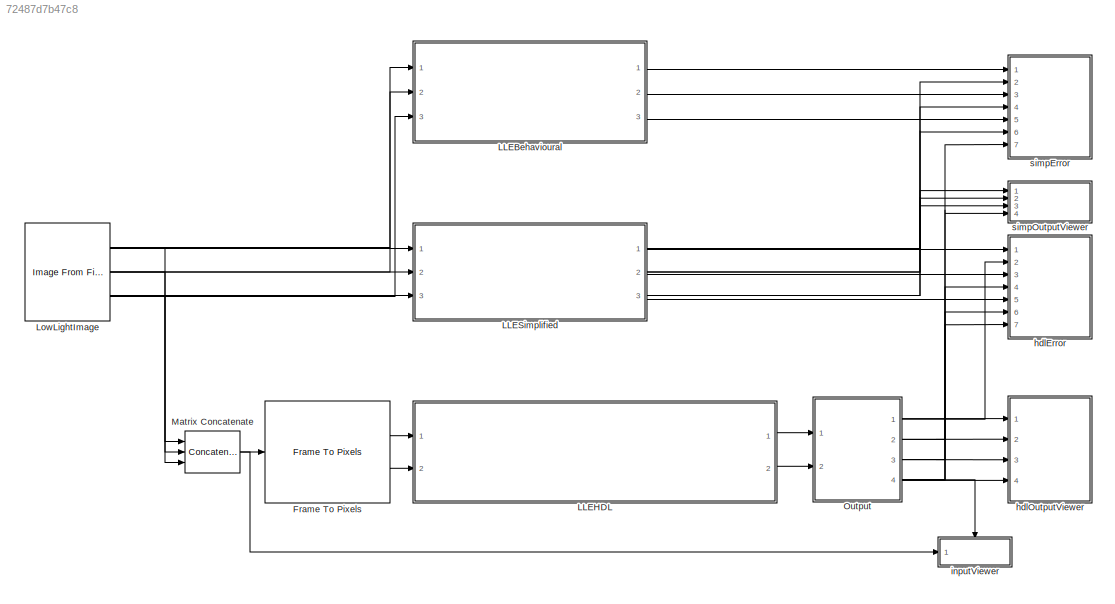
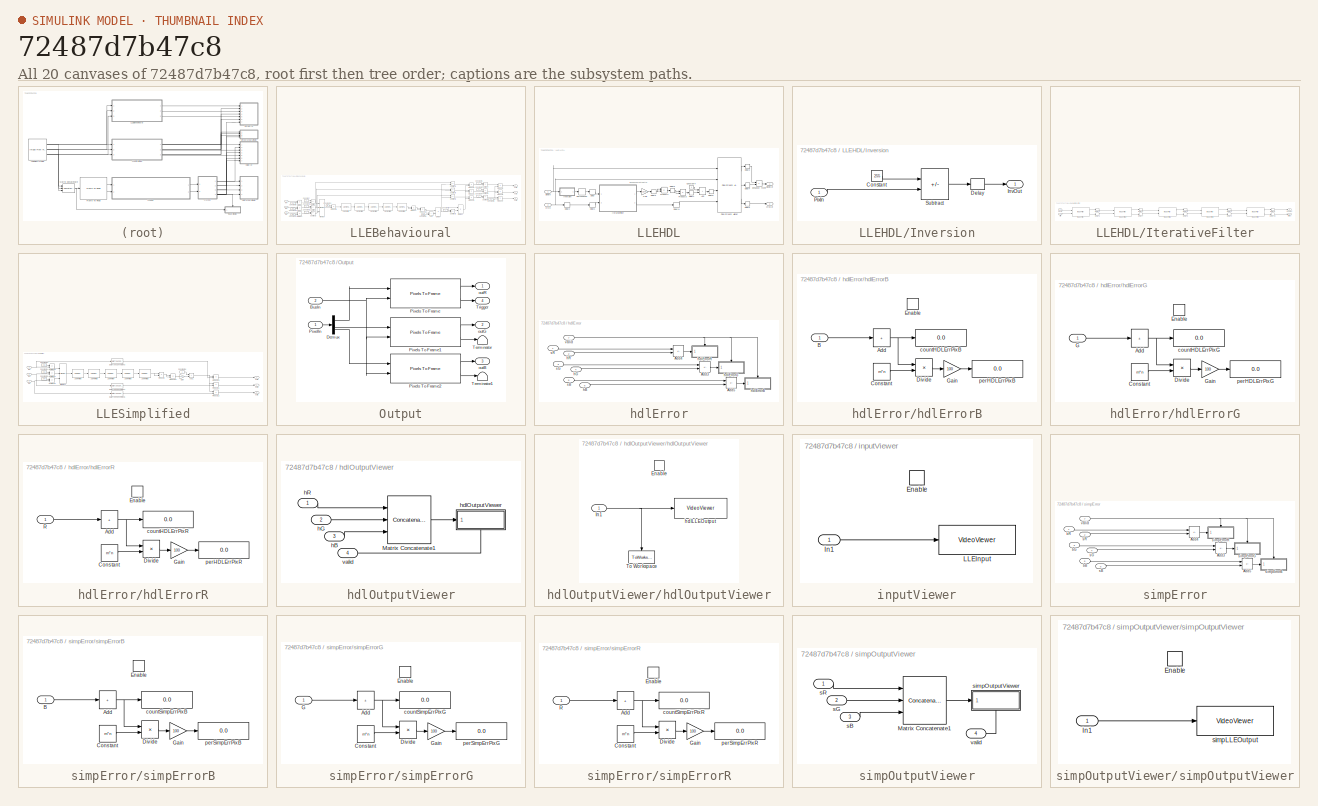
[diagram: thumbnail index - all 20 canvases of the model, root first then tree order]
MODEL slx_72487d7b47c8
KIND model
CONFIG AbsTol = auto
CONFIG EnableMultiTasking = off
CONFIG FixedStep = auto
CONFIG InitFcn = img_path = get_param('LLE/LowLightImage','FileName');\nimg = imread(img_path);\n[m,n,c] = size(img);\n\nh = [1, 2, 1; 2, 4, 2; 1, 2 ,1]./16;\nh1 = flipud(fliplr(h));\nT = (4000+(m+20)*(n+20));\n
CONFIG MaxStep = auto
CONFIG MinStep = auto
CONFIG RelTol = 1e-3
CONFIG SampleTimeConstraint = Unconstrained
CONFIG Solver = VariableStepAuto
CONFIG SolverName = VariableStepAuto
CONFIG StartTime = 0.0
CONFIG StopTime = 10.0
BLOCK [Reference] Frame To Pixels  REF=visionhdlio/Frame To Pixels
  Ports = [1, 2]
  SourceBlock = visionhdlio/Frame To Pixels
  SourceProductBaseCode = VT
  SourceType = Frame To Pixels
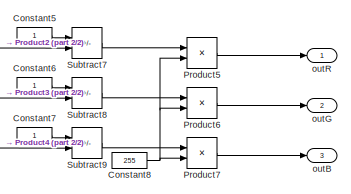
[diagram: LLEBehavioural - part 1/2, middle right region]
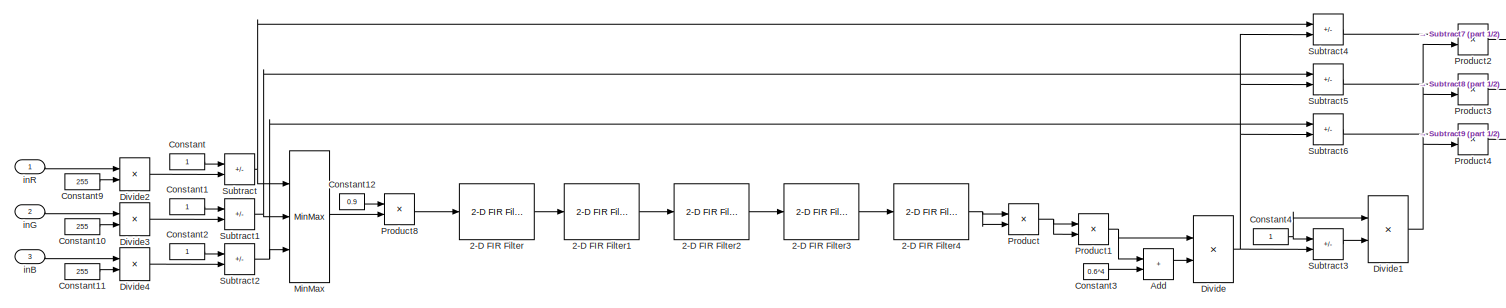
[diagram: LLEBehavioural - part 2/2, most of the canvas]
BLOCK [SubSystem] LLEBehavioural
  Ports = [3, 3]
  RequestExecContextInheritance = off
BLOCK [Reference] LLEBehavioural/2-D FIR Filter  REF=visionfilter/2-D FIR Filter
  Ports = [1, 1]
  SourceBlock = visionfilter/2-D FIR Filter
  SourceProductBaseCode = VP
  SourceType = 2-D FIR Filter
BLOCK [Reference] LLEBehavioural/2-D FIR Filter1  REF=visionfilter/2-D FIR Filter
  Ports = [1, 1]
  SourceBlock = visionfilter/2-D FIR Filter
  SourceProductBaseCode = VP
  SourceType = 2-D FIR Filter
BLOCK [Reference] LLEBehavioural/2-D FIR Filter2  REF=visionfilter/2-D FIR Filter
  Ports = [1, 1]
  SourceBlock = visionfilter/2-D FIR Filter
  SourceProductBaseCode = VP
  SourceType = 2-D FIR Filter
BLOCK [Reference] LLEBehavioural/2-D FIR Filter3  REF=visionfilter/2-D FIR Filter
  Ports = [1, 1]
  SourceBlock = visionfilter/2-D FIR Filter
  SourceProductBaseCode = VP
  SourceType = 2-D FIR Filter
BLOCK [Reference] LLEBehavioural/2-D FIR Filter4  REF=visionfilter/2-D FIR Filter
  Ports = [1, 1]
  SourceBlock = visionfilter/2-D FIR Filter
  SourceProductBaseCode = VP
  SourceType = 2-D FIR Filter
BLOCK [Sum] LLEBehavioural/Add
  IconShape = rectangular
  Ports = [2, 1]
BLOCK [Constant] LLEBehavioural/Constant
BLOCK [Constant] LLEBehavioural/Constant1
BLOCK [Constant] LLEBehavioural/Constant10
  OutDataTypeStr = double
  Value = 255
BLOCK [Constant] LLEBehavioural/Constant11
  OutDataTypeStr = double
  Value = 255
BLOCK [Constant] LLEBehavioural/Constant12
  Value = 0.9
BLOCK [Constant] LLEBehavioural/Constant2
BLOCK [Constant] LLEBehavioural/Constant3
  Value = 0.6^4
BLOCK [Constant] LLEBehavioural/Constant4
  NameLocation = top
BLOCK [Constant] LLEBehavioural/Constant5
BLOCK [Constant] LLEBehavioural/Constant6
BLOCK [Constant] LLEBehavioural/Constant7
BLOCK [Constant] LLEBehavioural/Constant8
  OutDataTypeStr = uint8
  Value = 255
BLOCK [Constant] LLEBehavioural/Constant9
  OutDataTypeStr = double
  Value = 255
BLOCK [Product] LLEBehavioural/Divide
  Inputs = */
  Ports = [2, 1]
BLOCK [Product] LLEBehavioural/Divide1
  Inputs = */
  Ports = [2, 1]
BLOCK [Product] LLEBehavioural/Divide2
  Inputs = */
  Ports = [2, 1]
BLOCK [Product] LLEBehavioural/Divide3
  Inputs = */
  Ports = [2, 1]
BLOCK [Product] LLEBehavioural/Divide4
  Inputs = */
  Ports = [2, 1]
BLOCK [MinMax] LLEBehavioural/MinMax
  Inputs = 3
  Ports = [3, 1]
BLOCK [Product] LLEBehavioural/Product
  Ports = [2, 1]
BLOCK [Product] LLEBehavioural/Product1
  Ports = [2, 1]
BLOCK [Product] LLEBehavioural/Product2
  Ports = [2, 1]
BLOCK [Product] LLEBehavioural/Product3
  Ports = [2, 1]
BLOCK [Product] LLEBehavioural/Product4
  Ports = [2, 1]
BLOCK [Product] LLEBehavioural/Product5
  OutDataTypeStr = uint8
  Ports = [2, 1]
  RndMeth = Nearest
  SaturateOnIntegerOverflow = on
BLOCK [Product] LLEBehavioural/Product6
  OutDataTypeStr = uint8
  Ports = [2, 1]
  RndMeth = Nearest
  SaturateOnIntegerOverflow = on
BLOCK [Product] LLEBehavioural/Product7
  OutDataTypeStr = uint8
  Ports = [2, 1]
  RndMeth = Nearest
  SaturateOnIntegerOverflow = on
BLOCK [Product] LLEBehavioural/Product8
  Ports = [2, 1]
BLOCK [Sum] LLEBehavioural/Subtract
  IconShape = rectangular
  Inputs = +-
  Ports = [2, 1]
BLOCK [Sum] LLEBehavioural/Subtract1
  IconShape = rectangular
  Inputs = +-
  Ports = [2, 1]
BLOCK [Sum] LLEBehavioural/Subtract2
  IconShape = rectangular
  Inputs = +-
  Ports = [2, 1]
BLOCK [Sum] LLEBehavioural/Subtract3
  IconShape = rectangular
  Inputs = +-
  Ports = [2, 1]
BLOCK [Sum] LLEBehavioural/Subtract4
  IconShape = rectangular
  Inputs = +-
  Ports = [2, 1]
BLOCK [Sum] LLEBehavioural/Subtract5
  IconShape = rectangular
  Inputs = +-
  Ports = [2, 1]
BLOCK [Sum] LLEBehavioural/Subtract6
  IconShape = rectangular
  Inputs = +-
  Ports = [2, 1]
BLOCK [Sum] LLEBehavioural/Subtract7
  IconShape = rectangular
  Inputs = +-
  Ports = [2, 1]
BLOCK [Sum] LLEBehavioural/Subtract8
  IconShape = rectangular
  Inputs = +-
  Ports = [2, 1]
BLOCK [Sum] LLEBehavioural/Subtract9
  IconShape = rectangular
  Inputs = +-
  Ports = [2, 1]
BLOCK [Inport] LLEBehavioural/inB
  Port = 3
BLOCK [Inport] LLEBehavioural/inG
  Port = 2
BLOCK [Inport] LLEBehavioural/inR
BLOCK [Outport] LLEBehavioural/outB
  Port = 3
  VectorParamsAs1DForOutWhenUnconnected = off
BLOCK [Outport] LLEBehavioural/outG
  Port = 2
  VectorParamsAs1DForOutWhenUnconnected = off
BLOCK [Outport] LLEBehavioural/outR
  VectorParamsAs1DForOutWhenUnconnected = off
BLOCK [SubSystem] LLEHDL
  Ports = [2, 2]
  RequestExecContextInheritance = off
BLOCK [Sum] LLEHDL/Add
  IconShape = rectangular
  OutDataTypeStr = fixdt(0,30,22)
  Ports = [2, 1]
  RndMeth = Nearest
  SaturateOnIntegerOverflow = on
BLOCK [Constant] LLEHDL/Constant4
  OutDataTypeStr = fixdt(0,8,0)
  SampleTime = -1
BLOCK [MinMax] LLEHDL/DarkChannel
  Ports = [1, 1]
  RndMeth = Nearest
  SaturateOnIntegerOverflow = on
BLOCK [Delay] LLEHDL/Delay
  DelayLength = 1
  InputPortMap = u0
  Ports = [1, 1]
BLOCK [Delay] LLEHDL/Delay1
  DelayLength = 1
  InputPortMap = u0
  Ports = [1, 1]
BLOCK [Delay] LLEHDL/Delay11
  DelayLength = 4
  InputPortMap = u0
  Ports = [1, 1]
BLOCK [Delay] LLEHDL/Delay2
  DelayLength = 1
  InputPortMap = u0
  Ports = [1, 1]
BLOCK [Delay] LLEHDL/Delay3
  DelayLength = 1
  InputPortMap = u0
  Ports = [1, 1]
BLOCK [Delay] LLEHDL/Delay4
  DelayLength = 1
  InputPortMap = u0
  Ports = [1, 1]
BLOCK [Delay] LLEHDL/Delay5
  DelayLength = 1
  InputPortMap = u0
  Ports = [1, 1]
BLOCK [Delay] LLEHDL/Delay6
  DelayLength = 1
  InputPortMap = u0
  Ports = [1, 1]
BLOCK [Delay] LLEHDL/Delay7
  DelayLength = 1
  InputPortMap = u0
  Ports = [1, 1]
BLOCK [Delay] LLEHDL/Delay8
  DelayLength = 1
  InputPortMap = u0
  Ports = [1, 1]
BLOCK [Delay] LLEHDL/Delay9
  DelayLength = 1
  InputPortMap = u0
  Ports = [1, 1]
BLOCK [Product] LLEHDL/Enhance- ment
  OutDataTypeStr = uint8
  Ports = [2, 1]
  RndMeth = Nearest
  SaturateOnIntegerOverflow = on
BLOCK [Gain] LLEHDL/Gain
  Gain = 1/170
  OutDataTypeStr = fixdt(0,24,22)
  ParamDataTypeStr = fixdt(0,24,20)
BLOCK [SubSystem] LLEHDL/Inversion
  Ports = [1, 1]
  RequestExecContextInheritance = off
BLOCK [Constant] LLEHDL/Inversion/Constant
  OutDataTypeStr = fixdt(0,8,0)
  SampleTime = -1
  Value = 255
BLOCK [Delay] LLEHDL/Inversion/Delay
  DelayLength = 1
  InputPortMap = u0
  Ports = [1, 1]
BLOCK [Outport] LLEHDL/Inversion/InvOut
  VectorParamsAs1DForOutWhenUnconnected = off
BLOCK [Inport] LLEHDL/Inversion/PixIn
BLOCK [Sum] LLEHDL/Inversion/Subtract
  IconShape = rectangular
  Inputs = +-
  OutDataTypeStr = uint8
  Ports = [2, 1]
  RndMeth = Nearest
  SaturateOnIntegerOverflow = on
BLOCK [SubSystem] LLEHDL/IterativeFilter
  Ports = [2, 2]
  RequestExecContextInheritance = off
BLOCK [Delay] LLEHDL/IterativeFilter/Delay1
  DelayLength = 1
  InputPortMap = u0
  Ports = [1, 1]
BLOCK [Delay] LLEHDL/IterativeFilter/Delay10
  DelayLength = 1
  InputPortMap = u0
  Ports = [1, 1]
BLOCK [Delay] LLEHDL/IterativeFilter/Delay2
  DelayLength = 1
  InputPortMap = u0
  Ports = [1, 1]
BLOCK [Delay] LLEHDL/IterativeFilter/Delay3
  DelayLength = 1
  InputPortMap = u0
  Ports = [1, 1]
BLOCK [Delay] LLEHDL/IterativeFilter/Delay4
  DelayLength = 1
  InputPortMap = u0
  Ports = [1, 1]
BLOCK [Delay] LLEHDL/IterativeFilter/Delay5
  DelayLength = 1
  InputPortMap = u0
  Ports = [1, 1]
BLOCK [Delay] LLEHDL/IterativeFilter/Delay6
  DelayLength = 1
  InputPortMap = u0
  Ports = [1, 1]
BLOCK [Delay] LLEHDL/IterativeFilter/Delay7
  DelayLength = 1
  InputPortMap = u0
  Ports = [1, 1]
BLOCK [Delay] LLEHDL/IterativeFilter/Delay8
  DelayLength = 1
  InputPortMap = u0
  Ports = [1, 1]
BLOCK [Delay] LLEHDL/IterativeFilter/Delay9
  DelayLength = 1
  InputPortMap = u0
  Ports = [1, 1]
BLOCK [Reference] LLEHDL/IterativeFilter/Image Filter  REF=visionhdlfilter/Image Filter
  Ports = [2, 2]
  SourceBlock = visionhdlfilter/Image Filter
  SourceProductBaseCode = VT
  SourceType = Image Filter
BLOCK [Reference] LLEHDL/IterativeFilter/Image Filter1  REF=visionhdlfilter/Image Filter
  Ports = [2, 2]
  SourceBlock = visionhdlfilter/Image Filter
  SourceProductBaseCode = VT
  SourceType = Image Filter
BLOCK [Reference] LLEHDL/IterativeFilter/Image Filter2  REF=visionhdlfilter/Image Filter
  Ports = [2, 2]
  SourceBlock = visionhdlfilter/Image Filter
  SourceProductBaseCode = VT
  SourceType = Image Filter
BLOCK [Reference] LLEHDL/IterativeFilter/Image Filter3  REF=visionhdlfilter/Image Filter
  Ports = [2, 2]
  SourceBlock = visionhdlfilter/Image Filter
  SourceProductBaseCode = VT
  SourceType = Image Filter
BLOCK [Reference] LLEHDL/IterativeFilter/Image Filter4  REF=visionhdlfilter/Image Filter
  Ports = [2, 2]
  SourceBlock = visionhdlfilter/Image Filter
  SourceProductBaseCode = VT
  SourceType = Image Filter
BLOCK [Inport] LLEHDL/IterativeFilter/ctrlIn
  Port = 2
BLOCK [Outport] LLEHDL/IterativeFilter/ctrlOut
  Port = 2
  VectorParamsAs1DForOutWhenUnconnected = off
BLOCK [Inport] LLEHDL/IterativeFilter/pixelIn
BLOCK [Outport] LLEHDL/IterativeFilter/pixelOut
  VectorParamsAs1DForOutWhenUnconnected = off
BLOCK [Reference] LLEHDL/Pixel Stream Aligner  REF=visionhdlutilities/Pixel Stream Aligner
  Ports = [4, 3]
  SourceBlock = visionhdlutilities/Pixel Stream Aligner
  SourceProductBaseCode = VT
  SourceType = visionhdl.PixelStreamAligner
BLOCK [Product] LLEHDL/Product2
  OutDataTypeStr = fixdt(0,26,22)
  Ports = [2, 1]
  RndMeth = Nearest
  SaturateOnIntegerOverflow = on
BLOCK [Product] LLEHDL/Product3
  OutDataTypeStr = fixdt(0,30,22)
  Ports = [2, 1]
  RndMeth = Nearest
  SaturateOnIntegerOverflow = on
BLOCK [Inport] LLEHDL/ctrlIn
  Port = 2
BLOCK [Outport] LLEHDL/ctrlOut
  Port = 2
  VectorParamsAs1DForOutWhenUnconnected = off
BLOCK [Inport] LLEHDL/pixelIn
BLOCK [Outport] LLEHDL/pixelOut
  VectorParamsAs1DForOutWhenUnconnected = off
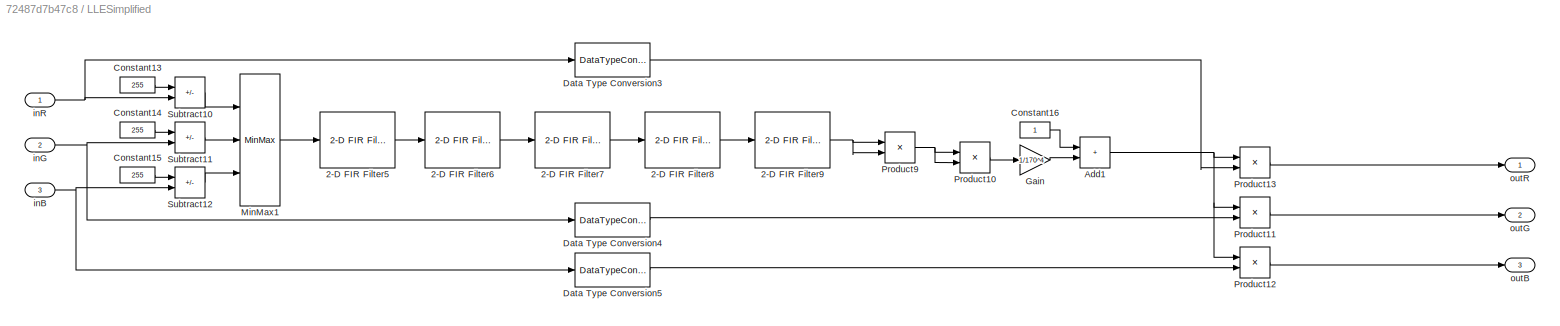
BLOCK [SubSystem] LLESimplified
  Ports = [3, 3]
  RequestExecContextInheritance = off
BLOCK [Reference] LLESimplified/2-D FIR Filter5  REF=visionfilter/2-D FIR Filter
  Ports = [1, 1]
  SourceBlock = visionfilter/2-D FIR Filter
  SourceProductBaseCode = VP
  SourceType = 2-D FIR Filter
BLOCK [Reference] LLESimplified/2-D FIR Filter6  REF=visionfilter/2-D FIR Filter
  Ports = [1, 1]
  SourceBlock = visionfilter/2-D FIR Filter
  SourceProductBaseCode = VP
  SourceType = 2-D FIR Filter
BLOCK [Reference] LLESimplified/2-D FIR Filter7  REF=visionfilter/2-D FIR Filter
  Ports = [1, 1]
  SourceBlock = visionfilter/2-D FIR Filter
  SourceProductBaseCode = VP
  SourceType = 2-D FIR Filter
BLOCK [Reference] LLESimplified/2-D FIR Filter8  REF=visionfilter/2-D FIR Filter
  Ports = [1, 1]
  SourceBlock = visionfilter/2-D FIR Filter
  SourceProductBaseCode = VP
  SourceType = 2-D FIR Filter
BLOCK [Reference] LLESimplified/2-D FIR Filter9  REF=visionfilter/2-D FIR Filter
  Ports = [1, 1]
  SourceBlock = visionfilter/2-D FIR Filter
  SourceProductBaseCode = VP
  SourceType = 2-D FIR Filter
BLOCK [Sum] LLESimplified/Add1
  IconShape = rectangular
  Ports = [2, 1]
BLOCK [Constant] LLESimplified/Constant13
  Value = 255
BLOCK [Constant] LLESimplified/Constant14
  Value = 255
BLOCK [Constant] LLESimplified/Constant15
  Value = 255
BLOCK [Constant] LLESimplified/Constant16
  NameLocation = top
BLOCK [DataTypeConversion] LLESimplified/Data Type Conversion3
  OutDataTypeStr = double
  RndMeth = Floor
  SaturateOnIntegerOverflow = off
BLOCK [DataTypeConversion] LLESimplified/Data Type Conversion4
  OutDataTypeStr = double
  RndMeth = Floor
  SaturateOnIntegerOverflow = off
BLOCK [DataTypeConversion] LLESimplified/Data Type Conversion5
  OutDataTypeStr = double
  RndMeth = Floor
  SaturateOnIntegerOverflow = off
BLOCK [Gain] LLESimplified/Gain
  Gain = 1/170^4
BLOCK [MinMax] LLESimplified/MinMax1
  Inputs = 3
  Ports = [3, 1]
BLOCK [Product] LLESimplified/Product10
  Ports = [2, 1]
BLOCK [Product] LLESimplified/Product11
  OutDataTypeStr = uint8
  Ports = [2, 1]
  RndMeth = Nearest
  SaturateOnIntegerOverflow = on
BLOCK [Product] LLESimplified/Product12
  OutDataTypeStr = uint8
  Ports = [2, 1]
  RndMeth = Nearest
  SaturateOnIntegerOverflow = on
BLOCK [Product] LLESimplified/Product13
  OutDataTypeStr = uint8
  Ports = [2, 1]
  RndMeth = Nearest
  SaturateOnIntegerOverflow = on
BLOCK [Product] LLESimplified/Product9
  Ports = [2, 1]
BLOCK [Sum] LLESimplified/Subtract10
  IconShape = rectangular
  Inputs = +-
  Ports = [2, 1]
BLOCK [Sum] LLESimplified/Subtract11
  IconShape = rectangular
  Inputs = +-
  Ports = [2, 1]
BLOCK [Sum] LLESimplified/Subtract12
  IconShape = rectangular
  Inputs = +-
  Ports = [2, 1]
BLOCK [Inport] LLESimplified/inB
  Port = 3
BLOCK [Inport] LLESimplified/inG
  Port = 2
BLOCK [Inport] LLESimplified/inR
BLOCK [Outport] LLESimplified/outB
  Port = 3
  VectorParamsAs1DForOutWhenUnconnected = off
BLOCK [Outport] LLESimplified/outG
  Port = 2
  VectorParamsAs1DForOutWhenUnconnected = off
BLOCK [Outport] LLESimplified/outR
  VectorParamsAs1DForOutWhenUnconnected = off
BLOCK [Reference] LowLightImage  REF=visionsources/Image From File
  Ports = [0, 3]
  SourceBlock = visionsources/Image From File
  SourceProductBaseCode = VP
  SourceType = Image From File
  Tag = vipblks_nd
BLOCK [Concatenate] Matrix Concatenate
  ConcatenateDimension = 3
  Mode = Multidimensional array
  NumInputs = 3
  Ports = [3, 1]
BLOCK [SubSystem] Output
  Ports = [2, 4]
  RequestExecContextInheritance = off
BLOCK [Inport] Output/BusIn
  Port = 2
BLOCK [Demux] Output/Demux
  Outputs = 3
  Ports = [1, 3]
BLOCK [Inport] Output/PixelIn
BLOCK [Reference] Output/Pixels To Frame  REF=visionhdlio/Pixels To Frame
  Ports = [2, 2]
  SourceBlock = visionhdlio/Pixels To Frame
  SourceProductBaseCode = VT
  SourceType = Pixels To Frame
BLOCK [Reference] Output/Pixels To Frame1  REF=visionhdlio/Pixels To Frame
  Ports = [2, 2]
  SourceBlock = visionhdlio/Pixels To Frame
  SourceProductBaseCode = VT
  SourceType = Pixels To Frame
BLOCK [Reference] Output/Pixels To Frame2  REF=visionhdlio/Pixels To Frame
  Ports = [2, 2]
  SourceBlock = visionhdlio/Pixels To Frame
  SourceProductBaseCode = VT
  SourceType = Pixels To Frame
BLOCK [Terminator] Output/Terminator
BLOCK [Terminator] Output/Terminator1
BLOCK [Outport] Output/Trigger
  Port = 4
  VectorParamsAs1DForOutWhenUnconnected = off
BLOCK [Outport] Output/outB
  Port = 3
  VectorParamsAs1DForOutWhenUnconnected = off
BLOCK [Outport] Output/outG
  Port = 2
  VectorParamsAs1DForOutWhenUnconnected = off
BLOCK [Outport] Output/outR
  VectorParamsAs1DForOutWhenUnconnected = off
BLOCK [SubSystem] hdlError
  Ports = [7]
  RequestExecContextInheritance = off
BLOCK [Sum] hdlError/Add3
  IconShape = rectangular
  Inputs = +-
  OutDataTypeStr = uint8
  Ports = [2, 1]
  RndMeth = Nearest
BLOCK [Sum] hdlError/Add4
  IconShape = rectangular
  Inputs = +-
  OutDataTypeStr = uint8
  Ports = [2, 1]
  RndMeth = Nearest
BLOCK [Sum] hdlError/Add5
  IconShape = rectangular
  Inputs = +-
  OutDataTypeStr = uint8
  Ports = [2, 1]
  RndMeth = Nearest
BLOCK [Inport] hdlError/hB
  Port = 6
BLOCK [Inport] hdlError/hG
  Port = 4
BLOCK [Inport] hdlError/hR
  Port = 2
BLOCK [SubSystem] hdlError/hdlErrorB
  Ports = [1, 0, 1]
  RequestExecContextInheritance = off
BLOCK [Sum] hdlError/hdlErrorB/Add
  IconShape = rectangular
  Inputs = +
  Ports = [1, 1]
BLOCK [Inport] hdlError/hdlErrorB/B
BLOCK [Constant] hdlError/hdlErrorB/Constant
  Value = m*n
BLOCK [Product] hdlError/hdlErrorB/Divide
  Inputs = */
  Ports = [2, 1]
BLOCK [EnablePort] hdlError/hdlErrorB/Enable
  Ports = []
BLOCK [Gain] hdlError/hdlErrorB/Gain
  Gain = 100
BLOCK [Display] hdlError/hdlErrorB/countHDLErrPixB
  Decimation = 1
  Ports = [1]
BLOCK [Display] hdlError/hdlErrorB/perHDLErrPixB
  Decimation = 1
  Ports = [1]
BLOCK [SubSystem] hdlError/hdlErrorG
  Ports = [1, 0, 1]
  RequestExecContextInheritance = off
BLOCK [Sum] hdlError/hdlErrorG/Add
  IconShape = rectangular
  Inputs = +
  Ports = [1, 1]
BLOCK [Constant] hdlError/hdlErrorG/Constant
  Value = m*n
BLOCK [Product] hdlError/hdlErrorG/Divide
  Inputs = */
  Ports = [2, 1]
BLOCK [EnablePort] hdlError/hdlErrorG/Enable
  Ports = []
BLOCK [Inport] hdlError/hdlErrorG/G
BLOCK [Gain] hdlError/hdlErrorG/Gain
  Gain = 100
BLOCK [Display] hdlError/hdlErrorG/countHDLErrPixG
  Decimation = 1
  Ports = [1]
BLOCK [Display] hdlError/hdlErrorG/perHDLErrPixG
  Decimation = 1
  Ports = [1]
BLOCK [SubSystem] hdlError/hdlErrorR
  Ports = [1, 0, 1]
  RequestExecContextInheritance = off
BLOCK [Sum] hdlError/hdlErrorR/Add
  IconShape = rectangular
  Inputs = +
  Ports = [1, 1]
BLOCK [Constant] hdlError/hdlErrorR/Constant
  Value = m*n
BLOCK [Product] hdlError/hdlErrorR/Divide
  Inputs = */
  Ports = [2, 1]
BLOCK [EnablePort] hdlError/hdlErrorR/Enable
  Ports = []
BLOCK [Gain] hdlError/hdlErrorR/Gain
  Gain = 100
BLOCK [Inport] hdlError/hdlErrorR/R
BLOCK [Display] hdlError/hdlErrorR/countHDLErrPixR
  Decimation = 1
  Ports = [1]
BLOCK [Display] hdlError/hdlErrorR/perHDLErrPixR
  Decimation = 1
  Ports = [1]
BLOCK [Inport] hdlError/sB
  Port = 5
BLOCK [Inport] hdlError/sG
  Port = 3
BLOCK [Inport] hdlError/sR
BLOCK [Inport] hdlError/valid
  Port = 7
BLOCK [SubSystem] hdlOutputViewer
  Ports = [4]
  RequestExecContextInheritance = off
BLOCK [Concatenate] hdlOutputViewer/Matrix Concatenate1
  ConcatenateDimension = 3
  Mode = Multidimensional array
  NumInputs = 3
  Ports = [3, 1]
BLOCK [Inport] hdlOutputViewer/hB
  Port = 3
BLOCK [Inport] hdlOutputViewer/hG
  Port = 2
BLOCK [Inport] hdlOutputViewer/hR
BLOCK [SubSystem] hdlOutputViewer/hdlOutputViewer
  NameLocation = top
  Ports = [1, 0, 1]
  RequestExecContextInheritance = off
BLOCK [EnablePort] hdlOutputViewer/hdlOutputViewer/Enable
  Ports = []
BLOCK [Inport] hdlOutputViewer/hdlOutputViewer/In1
BLOCK [ToWorkspace] hdlOutputViewer/hdlOutputViewer/To Workspace
  MaxDataPoints = inf
  NameLocation = left
  Ports = [1]
  SampleTime = -1
  Save2DSignal = 2-D array (concatenate along first dimension)
  VariableName = lle_out
BLOCK [VideoViewer] hdlOutputViewer/hdlOutputViewer/hdlLLEOutput
  FigPos = [781.8 550 352 290.4]
  Ports = [1]
  ScopeSpecificationString = vipscopes.VideoViewerScopeCfg('CurrentConfiguration', extmgr.ConfigurationSet(extmgr.Configuration('Core','General UI',true),extmgr.Configuration('Core','Source UI',true),extmgr.Configuration('Sources','WiredSimulink',true),extmgr.Configuration('Visuals','Video',true),extmgr.Configuration('Tools','Image Navigation Tools',true,'FitToView',true,'Magnification',0.704),extmgr.Configuration('Tools','Im...<+144ch>
  colormapValue = gray(256)
BLOCK [Inport] hdlOutputViewer/valid
  Port = 4
BLOCK [SubSystem] inputViewer
  Ports = [1, 0, 1]
  RequestExecContextInheritance = off
BLOCK [EnablePort] inputViewer/Enable
  Ports = []
BLOCK [Inport] inputViewer/In1
BLOCK [VideoViewer] inputViewer/LLEInput
  FigPos = [55.4 550.8 353.6 289.6]
  Ports = [1]
  ScopeSpecificationString = vipscopes.VideoViewerScopeCfg('CurrentConfiguration', extmgr.ConfigurationSet(extmgr.Configuration('Core','General UI',true),extmgr.Configuration('Core','Source UI',true),extmgr.Configuration('Sources','WiredSimulink',true),extmgr.Configuration('Visuals','Video',true),extmgr.Configuration('Tools','Image Navigation Tools',true,'Magnification',0.46166138023837,'FitToView',true),extmgr.Configuration(...<+158ch>
  colormapValue = gray(256)
BLOCK [SubSystem] simpError
  Ports = [7]
  RequestExecContextInheritance = off
BLOCK [Sum] simpError/Add3
  IconShape = rectangular
  Inputs = +-
  OutDataTypeStr = uint8
  Ports = [2, 1]
  RndMeth = Nearest
BLOCK [Sum] simpError/Add4
  IconShape = rectangular
  Inputs = +-
  OutDataTypeStr = uint8
  Ports = [2, 1]
  RndMeth = Nearest
BLOCK [Sum] simpError/Add5
  IconShape = rectangular
  Inputs = +-
  OutDataTypeStr = uint8
  Ports = [2, 1]
  RndMeth = Nearest
BLOCK [Inport] simpError/bB
  Port = 5
BLOCK [Inport] simpError/bG
  Port = 3
BLOCK [Inport] simpError/bR
BLOCK [Inport] simpError/sB
  Port = 6
BLOCK [Inport] simpError/sG
  Port = 4
BLOCK [Inport] simpError/sR
  Port = 2
BLOCK [SubSystem] simpError/simpErrorB
  Ports = [1, 0, 1]
  RequestExecContextInheritance = off
BLOCK [Sum] simpError/simpErrorB/Add
  IconShape = rectangular
  Inputs = +
  Ports = [1, 1]
BLOCK [Inport] simpError/simpErrorB/B
BLOCK [Constant] simpError/simpErrorB/Constant
  Value = m*n
BLOCK [Product] simpError/simpErrorB/Divide
  Inputs = */
  Ports = [2, 1]
BLOCK [EnablePort] simpError/simpErrorB/Enable
  Ports = []
BLOCK [Gain] simpError/simpErrorB/Gain
  Gain = 100
BLOCK [Display] simpError/simpErrorB/countSimpErrPixB
  Decimation = 1
  Ports = [1]
BLOCK [Display] simpError/simpErrorB/perSimpErrPixB
  Decimation = 1
  Ports = [1]
BLOCK [SubSystem] simpError/simpErrorG
  Ports = [1, 0, 1]
  RequestExecContextInheritance = off
BLOCK [Sum] simpError/simpErrorG/Add
  IconShape = rectangular
  Inputs = +
  Ports = [1, 1]
BLOCK [Constant] simpError/simpErrorG/Constant
  Value = m*n
BLOCK [Product] simpError/simpErrorG/Divide
  Inputs = */
  Ports = [2, 1]
BLOCK [EnablePort] simpError/simpErrorG/Enable
  Ports = []
BLOCK [Inport] simpError/simpErrorG/G
BLOCK [Gain] simpError/simpErrorG/Gain
  Gain = 100
BLOCK [Display] simpError/simpErrorG/countSimpErrPixG
  Decimation = 1
  Ports = [1]
BLOCK [Display] simpError/simpErrorG/perSimpErrPixG
  Decimation = 1
  Ports = [1]
BLOCK [SubSystem] simpError/simpErrorR
  Ports = [1, 0, 1]
  RequestExecContextInheritance = off
BLOCK [Sum] simpError/simpErrorR/Add
  IconShape = rectangular
  Inputs = +
  Ports = [1, 1]
BLOCK [Constant] simpError/simpErrorR/Constant
  Value = m*n
BLOCK [Product] simpError/simpErrorR/Divide
  Inputs = */
  Ports = [2, 1]
BLOCK [EnablePort] simpError/simpErrorR/Enable
  Ports = []
BLOCK [Gain] simpError/simpErrorR/Gain
  Gain = 100
BLOCK [Inport] simpError/simpErrorR/R
BLOCK [Display] simpError/simpErrorR/countSimpErrPixR
  Decimation = 1
  Ports = [1]
BLOCK [Display] simpError/simpErrorR/perSimpErrPixR
  Decimation = 1
  Ports = [1]
BLOCK [Inport] simpError/valid
  Port = 7
BLOCK [SubSystem] simpOutputViewer
  Ports = [4]
  RequestExecContextInheritance = off
BLOCK [Concatenate] simpOutputViewer/Matrix Concatenate1
  ConcatenateDimension = 3
  Mode = Multidimensional array
  NumInputs = 3
  Ports = [3, 1]
BLOCK [Inport] simpOutputViewer/sB
  Port = 3
BLOCK [Inport] simpOutputViewer/sG
  Port = 2
BLOCK [Inport] simpOutputViewer/sR
BLOCK [SubSystem] simpOutputViewer/simpOutputViewer
  NameLocation = top
  Ports = [1, 0, 1]
  RequestExecContextInheritance = off
BLOCK [EnablePort] simpOutputViewer/simpOutputViewer/Enable
  Ports = []
BLOCK [Inport] simpOutputViewer/simpOutputViewer/In1
BLOCK [VideoViewer] simpOutputViewer/simpOutputViewer/simpLLEOutput
  FigPos = [420.2 550.8 353.6 290.4]
  Ports = [1]
  ScopeSpecificationString = vipscopes.VideoViewerScopeCfg('CurrentConfiguration', extmgr.ConfigurationSet(extmgr.Configuration('Core','General UI',true),extmgr.Configuration('Core','Source UI',true),extmgr.Configuration('Sources','WiredSimulink',true),extmgr.Configuration('Visuals','Video',true),extmgr.Configuration('Tools','Image Navigation Tools',true,'Magnification',0.463541666666667,'FitToView',true),extmgr.Configuration...<+160ch>
  colormapValue = gray(256)
BLOCK [Inport] simpOutputViewer/valid
  Port = 4
ANNOTATION LLEHDL: EnhancementFactor
LINE Frame To Pixels:1 -> LLEHDL:1
LINE Frame To Pixels:2 -> LLEHDL:2
LINE LLEBehavioural/2-D FIR Filter1:1 -> LLEBehavioural/2-D FIR Filter2:1
LINE LLEBehavioural/2-D FIR Filter2:1 -> LLEBehavioural/2-D FIR Filter3:1
LINE LLEBehavioural/2-D FIR Filter3:1 -> LLEBehavioural/2-D FIR Filter4:1
NET LLEBehavioural/2-D FIR Filter4:1 -> LLEBehavioural/Product:1, LLEBehavioural/Product:2
LINE LLEBehavioural/2-D FIR Filter:1 -> LLEBehavioural/2-D FIR Filter1:1
LINE LLEBehavioural/Add:1 -> LLEBehavioural/Divide:2
LINE LLEBehavioural/Constant10:1 -> LLEBehavioural/Divide3:2
LINE LLEBehavioural/Constant11:1 -> LLEBehavioural/Divide4:2
LINE LLEBehavioural/Constant12:1 -> LLEBehavioural/Product8:1
LINE LLEBehavioural/Constant1:1 -> LLEBehavioural/Subtract1:1
LINE LLEBehavioural/Constant2:1 -> LLEBehavioural/Subtract2:1
LINE LLEBehavioural/Constant3:1 -> LLEBehavioural/Add:2
NET LLEBehavioural/Constant4:1 -> LLEBehavioural/Divide1:1, LLEBehavioural/Subtract3:1
LINE LLEBehavioural/Constant5:1 -> LLEBehavioural/Subtract7:1
LINE LLEBehavioural/Constant6:1 -> LLEBehavioural/Subtract8:1
LINE LLEBehavioural/Constant7:1 -> LLEBehavioural/Subtract9:1
NET LLEBehavioural/Constant8:1 -> LLEBehavioural/Product5:2, LLEBehavioural/Product6:2, LLEBehavioural/Product7:2
LINE LLEBehavioural/Constant9:1 -> LLEBehavioural/Divide2:2
LINE LLEBehavioural/Constant:1 -> LLEBehavioural/Subtract:1
NET LLEBehavioural/Divide1:1 -> LLEBehavioural/Product2:2, LLEBehavioural/Product3:2, LLEBehavioural/Product4:2
LINE LLEBehavioural/Divide2:1 -> LLEBehavioural/Subtract:2
LINE LLEBehavioural/Divide3:1 -> LLEBehavioural/Subtract1:2
LINE LLEBehavioural/Divide4:1 -> LLEBehavioural/Subtract2:2
NET LLEBehavioural/Divide:1 -> LLEBehavioural/Subtract3:2, LLEBehavioural/Subtract4:2, LLEBehavioural/Subtract5:2, LLEBehavioural/Subtract6:2
LINE LLEBehavioural/MinMax:1 -> LLEBehavioural/Product8:2
NET LLEBehavioural/Product1:1 -> LLEBehavioural/Add:1, LLEBehavioural/Divide:1
LINE LLEBehavioural/Product2:1 -> LLEBehavioural/Subtract7:2
LINE LLEBehavioural/Product3:1 -> LLEBehavioural/Subtract8:2
LINE LLEBehavioural/Product4:1 -> LLEBehavioural/Subtract9:2
LINE LLEBehavioural/Product5:1 -> LLEBehavioural/outR:1
LINE LLEBehavioural/Product6:1 -> LLEBehavioural/outG:1
LINE LLEBehavioural/Product7:1 -> LLEBehavioural/outB:1
LINE LLEBehavioural/Product8:1 -> LLEBehavioural/2-D FIR Filter:1
NET LLEBehavioural/Product:1 -> LLEBehavioural/Product1:1, LLEBehavioural/Product1:2
NET LLEBehavioural/Subtract1:1 -> LLEBehavioural/MinMax:2, LLEBehavioural/Subtract5:1
NET LLEBehavioural/Subtract2:1 -> LLEBehavioural/MinMax:3, LLEBehavioural/Subtract6:1
LINE LLEBehavioural/Subtract3:1 -> LLEBehavioural/Divide1:2
LINE LLEBehavioural/Subtract4:1 -> LLEBehavioural/Product2:1
LINE LLEBehavioural/Subtract5:1 -> LLEBehavioural/Product3:1
LINE LLEBehavioural/Subtract6:1 -> LLEBehavioural/Product4:1
LINE LLEBehavioural/Subtract7:1 -> LLEBehavioural/Product5:1
LINE LLEBehavioural/Subtract8:1 -> LLEBehavioural/Product6:1
LINE LLEBehavioural/Subtract9:1 -> LLEBehavioural/Product7:1
NET LLEBehavioural/Subtract:1 -> LLEBehavioural/MinMax:1, LLEBehavioural/Subtract4:1
LINE LLEBehavioural/inB:1 -> LLEBehavioural/Divide4:1
LINE LLEBehavioural/inG:1 -> LLEBehavioural/Divide3:1
LINE LLEBehavioural/inR:1 -> LLEBehavioural/Divide2:1
LINE LLEBehavioural:1 -> simpError:1
LINE LLEBehavioural:2 -> simpError:3
LINE LLEBehavioural:3 -> simpError:5
LINE LLEHDL/Add:1 -> LLEHDL/Delay8:1
LINE LLEHDL/Constant4:1 -> LLEHDL/Add:1
LINE LLEHDL/DarkChannel:1 -> LLEHDL/Delay:1
LINE LLEHDL/Delay11:1 -> LLEHDL/Pixel Stream Aligner:4
LINE LLEHDL/Delay1:1 -> LLEHDL/IterativeFilter:2
LINE LLEHDL/Delay2:1 -> LLEHDL/Delay1:1
LINE LLEHDL/Delay3:1 -> LLEHDL/Enhance- ment:1
LINE LLEHDL/Delay4:1 -> LLEHDL/Enhance- ment:2
LINE LLEHDL/Delay5:1 -> LLEHDL/ctrlOut:1
NET LLEHDL/Delay6:1 -> LLEHDL/Product3:1, LLEHDL/Product3:2
LINE LLEHDL/Delay7:1 -> LLEHDL/Add:2
LINE LLEHDL/Delay8:1 -> LLEHDL/Pixel Stream Aligner:3
NET LLEHDL/Delay9:1 -> LLEHDL/Product2:1, LLEHDL/Product2:2
LINE LLEHDL/Delay:1 -> LLEHDL/IterativeFilter:1
LINE LLEHDL/Enhance- ment:1 -> LLEHDL/pixelOut:1
LINE LLEHDL/Gain:1 -> LLEHDL/Delay9:1
LINE LLEHDL/Inversion/Constant:1 -> LLEHDL/Inversion/Subtract:1
LINE LLEHDL/Inversion/Delay:1 -> LLEHDL/Inversion/InvOut:1
LINE LLEHDL/Inversion/PixIn:1 -> LLEHDL/Inversion/Subtract:2
LINE LLEHDL/Inversion/Subtract:1 -> LLEHDL/Inversion/Delay:1
LINE LLEHDL/Inversion:1 -> LLEHDL/DarkChannel:1
LINE LLEHDL/IterativeFilter/Delay10:1 -> LLEHDL/IterativeFilter/ctrlOut:1
LINE LLEHDL/IterativeFilter/Delay1:1 -> LLEHDL/IterativeFilter/Image Filter1:1
LINE LLEHDL/IterativeFilter/Delay2:1 -> LLEHDL/IterativeFilter/Image Filter2:1
LINE LLEHDL/IterativeFilter/Delay3:1 -> LLEHDL/IterativeFilter/Image Filter3:1
LINE LLEHDL/IterativeFilter/Delay4:1 -> LLEHDL/IterativeFilter/Image Filter4:1
LINE LLEHDL/IterativeFilter/Delay5:1 -> LLEHDL/IterativeFilter/pixelOut:1
LINE LLEHDL/IterativeFilter/Delay6:1 -> LLEHDL/IterativeFilter/Image Filter1:2
LINE LLEHDL/IterativeFilter/Delay7:1 -> LLEHDL/IterativeFilter/Image Filter2:2
LINE LLEHDL/IterativeFilter/Delay8:1 -> LLEHDL/IterativeFilter/Image Filter3:2
LINE LLEHDL/IterativeFilter/Delay9:1 -> LLEHDL/IterativeFilter/Image Filter4:2
LINE LLEHDL/IterativeFilter/Image Filter1:1 -> LLEHDL/IterativeFilter/Delay2:1
LINE LLEHDL/IterativeFilter/Image Filter1:2 -> LLEHDL/IterativeFilter/Delay7:1
LINE LLEHDL/IterativeFilter/Image Filter2:1 -> LLEHDL/IterativeFilter/Delay3:1
LINE LLEHDL/IterativeFilter/Image Filter2:2 -> LLEHDL/IterativeFilter/Delay8:1
LINE LLEHDL/IterativeFilter/Image Filter3:1 -> LLEHDL/IterativeFilter/Delay4:1
LINE LLEHDL/IterativeFilter/Image Filter3:2 -> LLEHDL/IterativeFilter/Delay9:1
LINE LLEHDL/IterativeFilter/Image Filter4:1 -> LLEHDL/IterativeFilter/Delay5:1
LINE LLEHDL/IterativeFilter/Image Filter4:2 -> LLEHDL/IterativeFilter/Delay10:1
LINE LLEHDL/IterativeFilter/Image Filter:1 -> LLEHDL/IterativeFilter/Delay1:1
LINE LLEHDL/IterativeFilter/Image Filter:2 -> LLEHDL/IterativeFilter/Delay6:1
LINE LLEHDL/IterativeFilter/ctrlIn:1 -> LLEHDL/IterativeFilter/Image Filter:2
LINE LLEHDL/IterativeFilter/pixelIn:1 -> LLEHDL/IterativeFilter/Image Filter:1
LINE LLEHDL/IterativeFilter:1 -> LLEHDL/Gain:1
LINE LLEHDL/IterativeFilter:2 -> LLEHDL/Delay11:1
LINE LLEHDL/Pixel Stream Aligner:1 -> LLEHDL/Delay3:1
LINE LLEHDL/Pixel Stream Aligner:2 -> LLEHDL/Delay4:1
LINE LLEHDL/Pixel Stream Aligner:3 -> LLEHDL/Delay5:1
LINE LLEHDL/Product2:1 -> LLEHDL/Delay6:1
LINE LLEHDL/Product3:1 -> LLEHDL/Delay7:1
NET LLEHDL/ctrlIn:1 -> LLEHDL/Delay2:1, LLEHDL/Pixel Stream Aligner:2
NET LLEHDL/pixelIn:1 -> LLEHDL/Inversion:1, LLEHDL/Pixel Stream Aligner:1
LINE LLEHDL:1 -> Output:1
LINE LLEHDL:2 -> Output:2
LINE LLESimplified/2-D FIR Filter5:1 -> LLESimplified/2-D FIR Filter6:1
LINE LLESimplified/2-D FIR Filter6:1 -> LLESimplified/2-D FIR Filter7:1
LINE LLESimplified/2-D FIR Filter7:1 -> LLESimplified/2-D FIR Filter8:1
LINE LLESimplified/2-D FIR Filter8:1 -> LLESimplified/2-D FIR Filter9:1
NET LLESimplified/2-D FIR Filter9:1 -> LLESimplified/Product9:1, LLESimplified/Product9:2
NET LLESimplified/Add1:1 -> LLESimplified/Product11:1, LLESimplified/Product12:1, LLESimplified/Product13:1
LINE LLESimplified/Constant13:1 -> LLESimplified/Subtract10:1
LINE LLESimplified/Constant14:1 -> LLESimplified/Subtract11:1
LINE LLESimplified/Constant15:1 -> LLESimplified/Subtract12:1
LINE LLESimplified/Constant16:1 -> LLESimplified/Add1:1
LINE LLESimplified/Data Type Conversion3:1 -> LLESimplified/Product13:2
LINE LLESimplified/Data Type Conversion4:1 -> LLESimplified/Product11:2
LINE LLESimplified/Data Type Conversion5:1 -> LLESimplified/Product12:2
LINE LLESimplified/Gain:1 -> LLESimplified/Add1:2
LINE LLESimplified/MinMax1:1 -> LLESimplified/2-D FIR Filter5:1
LINE LLESimplified/Product10:1 -> LLESimplified/Gain:1
LINE LLESimplified/Product11:1 -> LLESimplified/outG:1
LINE LLESimplified/Product12:1 -> LLESimplified/outB:1
LINE LLESimplified/Product13:1 -> LLESimplified/outR:1
NET LLESimplified/Product9:1 -> LLESimplified/Product10:1, LLESimplified/Product10:2
LINE LLESimplified/Subtract10:1 -> LLESimplified/MinMax1:1
LINE LLESimplified/Subtract11:1 -> LLESimplified/MinMax1:2
LINE LLESimplified/Subtract12:1 -> LLESimplified/MinMax1:3
NET LLESimplified/inB:1 -> LLESimplified/Data Type Conversion5:1, LLESimplified/Subtract12:2
NET LLESimplified/inG:1 -> LLESimplified/Data Type Conversion4:1, LLESimplified/Subtract11:2
NET LLESimplified/inR:1 -> LLESimplified/Data Type Conversion3:1, LLESimplified/Subtract10:2
NET LLESimplified:1 -> hdlError:1, simpError:2, simpOutputViewer:1
NET LLESimplified:2 -> hdlError:3, simpError:4, simpOutputViewer:2
NET LLESimplified:3 -> hdlError:5, simpError:6, simpOutputViewer:3
NET LowLightImage:1 -> LLEBehavioural:1, LLESimplified:1, Matrix Concatenate:1
NET LowLightImage:2 -> LLEBehavioural:2, LLESimplified:2, Matrix Concatenate:2
NET LowLightImage:3 -> LLEBehavioural:3, LLESimplified:3, Matrix Concatenate:3
NET Matrix Concatenate:1 -> Frame To Pixels:1, inputViewer:1
NET Output/BusIn:1 -> Output/Pixels To Frame1:2, Output/Pixels To Frame2:2, Output/Pixels To Frame:2
LINE Output/Demux:1 -> Output/Pixels To Frame:1
LINE Output/Demux:2 -> Output/Pixels To Frame1:1
LINE Output/Demux:3 -> Output/Pixels To Frame2:1
LINE Output/PixelIn:1 -> Output/Demux:1
LINE Output/Pixels To Frame1:1 -> Output/outG:1
LINE Output/Pixels To Frame1:2 -> Output/Terminator:1
LINE Output/Pixels To Frame2:1 -> Output/outB:1
LINE Output/Pixels To Frame2:2 -> Output/Terminator1:1
LINE Output/Pixels To Frame:1 -> Output/outR:1
LINE Output/Pixels To Frame:2 -> Output/Trigger:1
NET Output:1 -> hdlError:2, hdlOutputViewer:1
NET Output:2 -> hdlError:4, hdlOutputViewer:2
NET Output:3 -> hdlError:6, hdlOutputViewer:3
NET Output:4 -> hdlError:7, hdlOutputViewer:4, inputViewer:enable, simpError:7, simpOutputViewer:4
LINE hdlError/Add3:1 -> hdlError/hdlErrorG:1
LINE hdlError/Add4:1 -> hdlError/hdlErrorR:1
LINE hdlError/Add5:1 -> hdlError/hdlErrorB:1
LINE hdlError/hB:1 -> hdlError/Add5:2
LINE hdlError/hG:1 -> hdlError/Add3:2
LINE hdlError/hR:1 -> hdlError/Add4:2
NET hdlError/hdlErrorB/Add:1 -> hdlError/hdlErrorB/Divide:1, hdlError/hdlErrorB/countHDLErrPixB:1
LINE hdlError/hdlErrorB/B:1 -> hdlError/hdlErrorB/Add:1
LINE hdlError/hdlErrorB/Constant:1 -> hdlError/hdlErrorB/Divide:2
LINE hdlError/hdlErrorB/Divide:1 -> hdlError/hdlErrorB/Gain:1
LINE hdlError/hdlErrorB/Gain:1 -> hdlError/hdlErrorB/perHDLErrPixB:1
NET hdlError/hdlErrorG/Add:1 -> hdlError/hdlErrorG/Divide:1, hdlError/hdlErrorG/countHDLErrPixG:1
LINE hdlError/hdlErrorG/Constant:1 -> hdlError/hdlErrorG/Divide:2
LINE hdlError/hdlErrorG/Divide:1 -> hdlError/hdlErrorG/Gain:1
LINE hdlError/hdlErrorG/G:1 -> hdlError/hdlErrorG/Add:1
LINE hdlError/hdlErrorG/Gain:1 -> hdlError/hdlErrorG/perHDLErrPixG:1
NET hdlError/hdlErrorR/Add:1 -> hdlError/hdlErrorR/Divide:1, hdlError/hdlErrorR/countHDLErrPixR:1
LINE hdlError/hdlErrorR/Constant:1 -> hdlError/hdlErrorR/Divide:2
LINE hdlError/hdlErrorR/Divide:1 -> hdlError/hdlErrorR/Gain:1
LINE hdlError/hdlErrorR/Gain:1 -> hdlError/hdlErrorR/perHDLErrPixR:1
LINE hdlError/hdlErrorR/R:1 -> hdlError/hdlErrorR/Add:1
LINE hdlError/sB:1 -> hdlError/Add5:1
LINE hdlError/sG:1 -> hdlError/Add3:1
LINE hdlError/sR:1 -> hdlError/Add4:1
NET hdlError/valid:1 -> hdlError/hdlErrorB:enable, hdlError/hdlErrorG:enable, hdlError/hdlErrorR:enable
LINE hdlOutputViewer/Matrix Concatenate1:1 -> hdlOutputViewer/hdlOutputViewer:1
LINE hdlOutputViewer/hB:1 -> hdlOutputViewer/Matrix Concatenate1:3
LINE hdlOutputViewer/hG:1 -> hdlOutputViewer/Matrix Concatenate1:2
LINE hdlOutputViewer/hR:1 -> hdlOutputViewer/Matrix Concatenate1:1
NET hdlOutputViewer/hdlOutputViewer/In1:1 -> hdlOutputViewer/hdlOutputViewer/To Workspace:1, hdlOutputViewer/hdlOutputViewer/hdlLLEOutput:1
LINE hdlOutputViewer/valid:1 -> hdlOutputViewer/hdlOutputViewer:enable
LINE inputViewer/In1:1 -> inputViewer/LLEInput:1
LINE simpError/Add3:1 -> simpError/simpErrorG:1
LINE simpError/Add4:1 -> simpError/simpErrorR:1
LINE simpError/Add5:1 -> simpError/simpErrorB:1
LINE simpError/bB:1 -> simpError/Add5:1
LINE simpError/bG:1 -> simpError/Add3:1
LINE simpError/bR:1 -> simpError/Add4:1
LINE simpError/sB:1 -> simpError/Add5:2
LINE simpError/sG:1 -> simpError/Add3:2
LINE simpError/sR:1 -> simpError/Add4:2
NET simpError/simpErrorB/Add:1 -> simpError/simpErrorB/Divide:1, simpError/simpErrorB/countSimpErrPixB:1
LINE simpError/simpErrorB/B:1 -> simpError/simpErrorB/Add:1
LINE simpError/simpErrorB/Constant:1 -> simpError/simpErrorB/Divide:2
LINE simpError/simpErrorB/Divide:1 -> simpError/simpErrorB/Gain:1
LINE simpError/simpErrorB/Gain:1 -> simpError/simpErrorB/perSimpErrPixB:1
NET simpError/simpErrorG/Add:1 -> simpError/simpErrorG/Divide:1, simpError/simpErrorG/countSimpErrPixG:1
LINE simpError/simpErrorG/Constant:1 -> simpError/simpErrorG/Divide:2
LINE simpError/simpErrorG/Divide:1 -> simpError/simpErrorG/Gain:1
LINE simpError/simpErrorG/G:1 -> simpError/simpErrorG/Add:1
LINE simpError/simpErrorG/Gain:1 -> simpError/simpErrorG/perSimpErrPixG:1
NET simpError/simpErrorR/Add:1 -> simpError/simpErrorR/Divide:1, simpError/simpErrorR/countSimpErrPixR:1
LINE simpError/simpErrorR/Constant:1 -> simpError/simpErrorR/Divide:2
LINE simpError/simpErrorR/Divide:1 -> simpError/simpErrorR/Gain:1
LINE simpError/simpErrorR/Gain:1 -> simpError/simpErrorR/perSimpErrPixR:1
LINE simpError/simpErrorR/R:1 -> simpError/simpErrorR/Add:1
NET simpError/valid:1 -> simpError/simpErrorB:enable, simpError/simpErrorG:enable, simpError/simpErrorR:enable
LINE simpOutputViewer/Matrix Concatenate1:1 -> simpOutputViewer/simpOutputViewer:1
LINE simpOutputViewer/sB:1 -> simpOutputViewer/Matrix Concatenate1:3
LINE simpOutputViewer/sG:1 -> simpOutputViewer/Matrix Concatenate1:2
LINE simpOutputViewer/sR:1 -> simpOutputViewer/Matrix Concatenate1:1
LINE simpOutputViewer/simpOutputViewer/In1:1 -> simpOutputViewer/simpOutputViewer/simpLLEOutput:1
LINE simpOutputViewer/valid:1 -> simpOutputViewer/simpOutputViewer:enable
note: NET lines group one-source signal fan-out (src -> all destinations, sorted); 1:1 wires keep LINE
